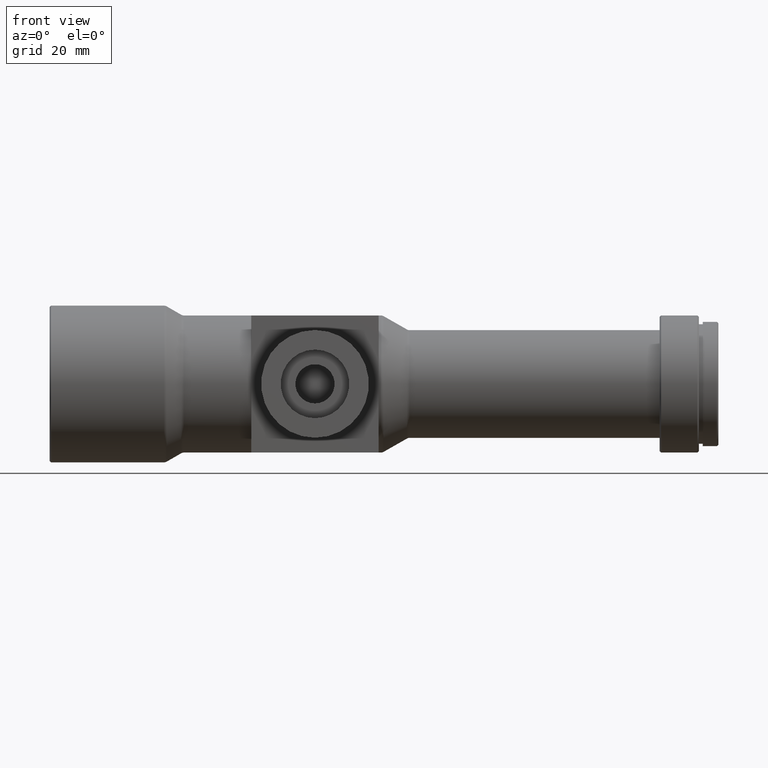
[diagram: clean part render]
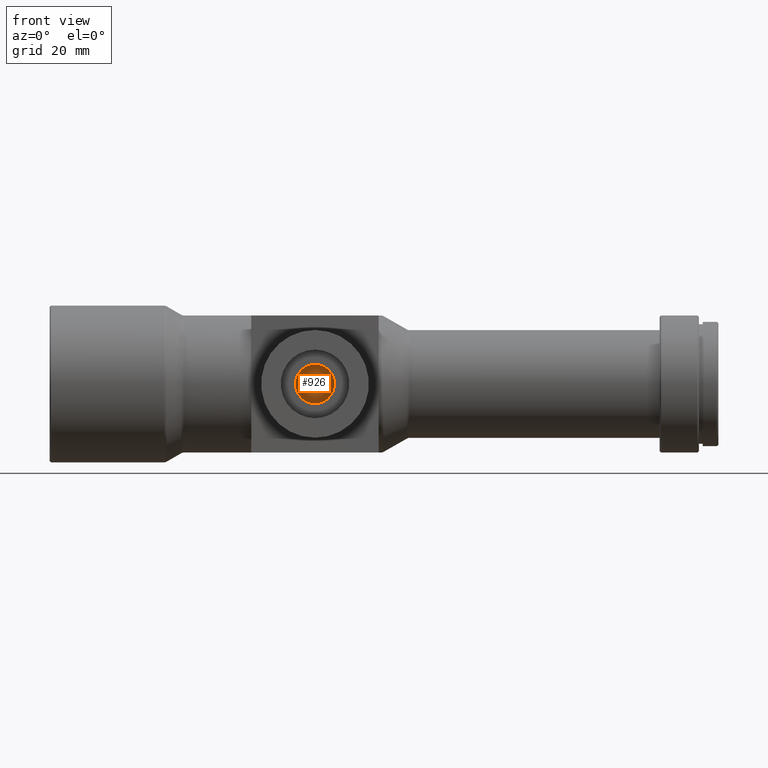
[diagram: same view with one face highlighted and labeled with its STEP entity id]
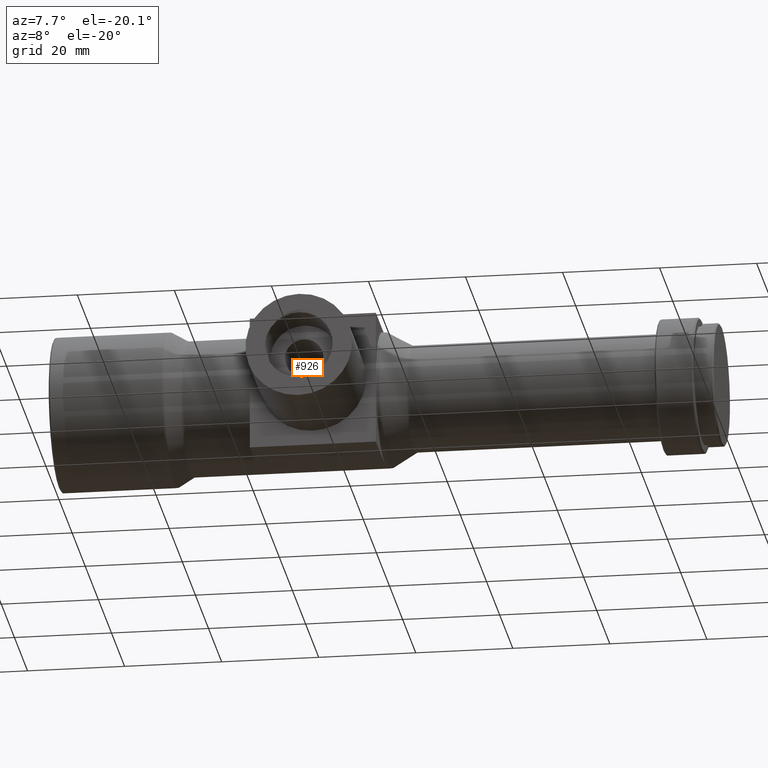
[diagram: same view with one face highlighted and labeled with its STEP entity id]
A machine part, front view. The second image highlights one B-rep face of the part: STEP entity #926.
A second angle (auxiliary view) of the same face is appended — the face is thin or edge-on in the first view.
In plain terms, the highlighted planar face has unit normal (0, -1, 0).
Its self-contained STEP definition (entity closure, byte-faithful):
#34 = EDGE_CURVE ( 'NONE', #597, #529, #866, .T. ) ;
#113 = DIRECTION ( 'NONE',  ( 0.0000000000000000000, -1.000000000000000000, 0.0000000000000000000 ) ) ;
#186 = CARTESIAN_POINT ( 'NONE',  ( 54.20000000000001000, -15.50000000000000400, 0.0000000000000000000 ) ) ;
#210 = FACE_OUTER_BOUND ( 'NONE', #1213, .T. ) ;
#228 = DIRECTION ( 'NONE',  ( 0.0000000000000000000, -0.0000000000000000000, -1.000000000000000000 ) ) ;
#252 = AXIS2_PLACEMENT_3D ( 'NONE', #411, #296, #1188 ) ;
#296 = DIRECTION ( 'NONE',  ( -0.0000000000000000000, 1.000000000000000000, -0.0000000000000000000 ) ) ;
#397 = ORIENTED_EDGE ( 'NONE', *, *, #550, .F. ) ;
#411 = CARTESIAN_POINT ( 'NONE',  ( 54.20000000000001000, -15.50000000000000400, 0.0000000000000000000 ) ) ;
#529 = VERTEX_POINT ( 'NONE', #1209 ) ;
#550 = EDGE_CURVE ( 'NONE', #529, #597, #668, .T. ) ;
#597 = VERTEX_POINT ( 'NONE', #893 ) ;
#668 = CIRCLE ( 'NONE', #252, 4.000000000000003600 ) ;
#691 = CARTESIAN_POINT ( 'NONE',  ( 50.20000000000001000, -15.50000000000000400, 0.0000000000000000000 ) ) ;
#747 = ORIENTED_EDGE ( 'NONE', *, *, #34, .F. ) ;
#769 = DIRECTION ( 'NONE',  ( 0.0000000000000000000, 0.0000000000000000000, 1.000000000000000000 ) ) ;
#863 = AXIS2_PLACEMENT_3D ( 'NONE', #186, #1091, #769 ) ;
#866 = CIRCLE ( 'NONE', #863, 4.000000000000003600 ) ;
#893 = CARTESIAN_POINT ( 'NONE',  ( 54.20000000000001000, -15.50000000000000400, 4.000000000000003600 ) ) ;
#926 = ADVANCED_FACE ( 'NONE', ( #210 ), #1360, .T. ) ;
#1091 = DIRECTION ( 'NONE',  ( -0.0000000000000000000, 1.000000000000000000, -0.0000000000000000000 ) ) ;
#1188 = DIRECTION ( 'NONE',  ( 0.0000000000000000000, 0.0000000000000000000, 1.000000000000000000 ) ) ;
#1209 = CARTESIAN_POINT ( 'NONE',  ( 54.20000000000001000, -15.50000000000000400, -4.000000000000003600 ) ) ;
#1213 = EDGE_LOOP ( 'NONE', ( #747, #397 ) ) ;
#1360 = PLANE ( 'NONE',  #1402 ) ;
#1402 = AXIS2_PLACEMENT_3D ( 'NONE', #691, #113, #228 ) ;